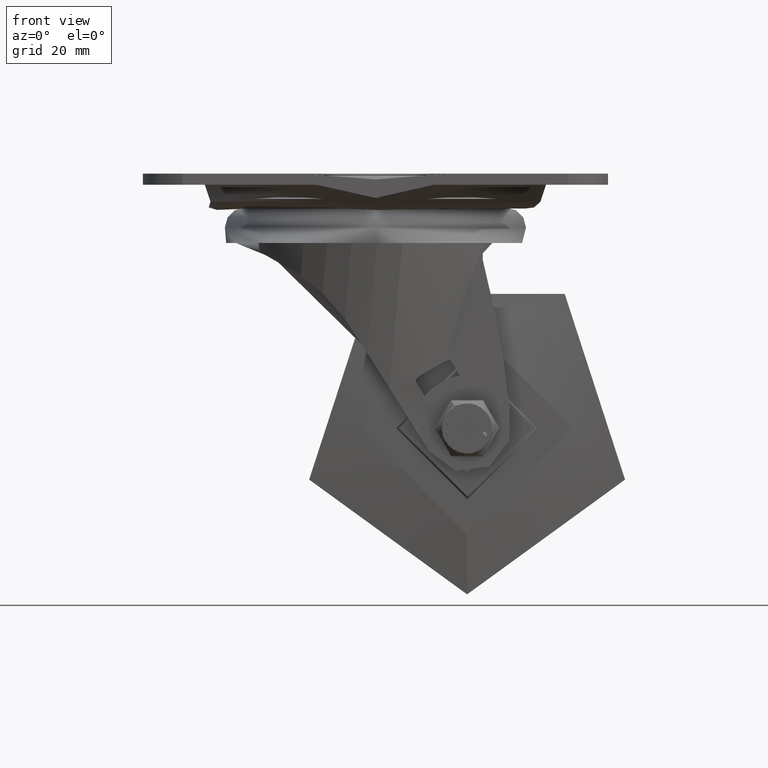
[diagram: clean part render]
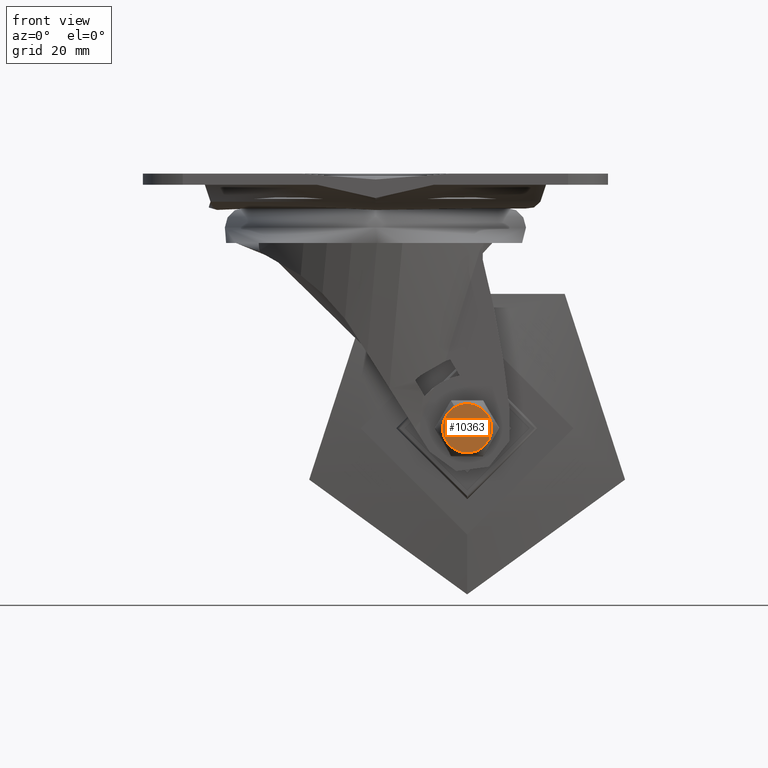
[diagram: same view with one face highlighted and labeled with its STEP entity id]
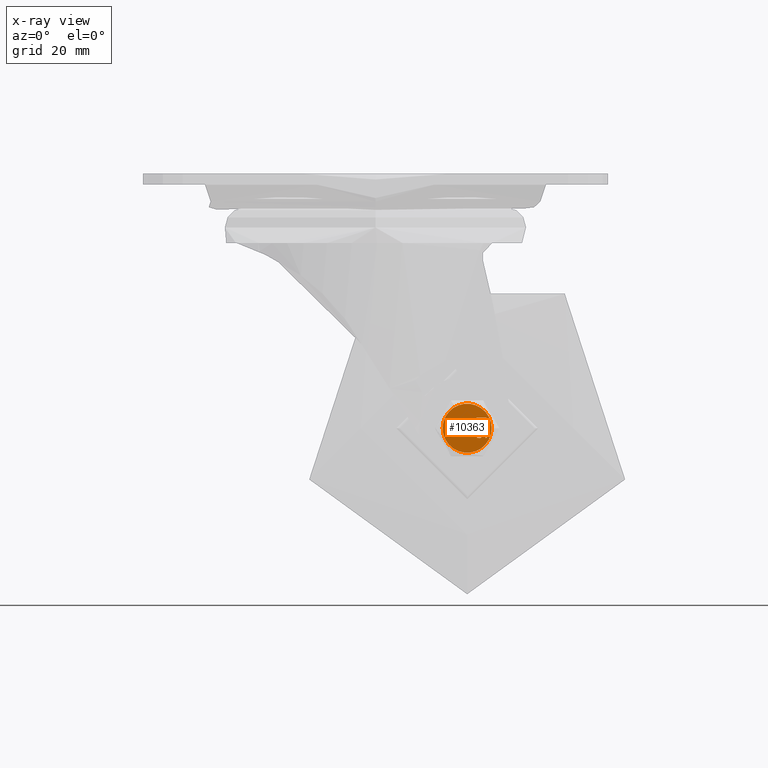
[diagram: x-ray of the same camera — body ghosted, the highlighted face saturated]
A machine part, front view. The second image highlights one B-rep face of the part: STEP entity #10363.
The next image is the same camera in x-ray: the body ghosted, the highlighted face saturated — about 0% of this face is hidden behind the body in this view.
In plain terms, the highlighted planar face has unit normal (0, -1, 0).
Its self-contained STEP definition (entity closure, byte-faithful):
#585=FACE_BOUND('',#3725,.T.);
#586=FACE_BOUND('',#3726,.T.);
#587=FACE_BOUND('',#3727,.T.);
#588=FACE_BOUND('',#3728,.T.);
#589=FACE_BOUND('',#3729,.T.);
#763=PLANE('',#11501);
#1200=B_SPLINE_CURVE_WITH_KNOTS('',2,(#22873,#22874,#22875,#22876,#22877,
#22878),.UNSPECIFIED.,.F.,.F.,(3,1,1,1,3),(0.,1.,1.99999999999993,3.00768321512988,
4.01536643025986),.UNSPECIFIED.);
#1201=B_SPLINE_CURVE_WITH_KNOTS('',2,(#22882,#22883,#22884,#22885,#22886,
#22887),.UNSPECIFIED.,.F.,.F.,(3,1,1,1,3),(0.,1.,2.00000000000004,2.99231678487006,
3.98463356974008),.UNSPECIFIED.);
#1202=B_SPLINE_CURVE_WITH_KNOTS('',2,(#22891,#22892,#22893),
 .UNSPECIFIED.,.F.,.F.,(3,3),(0.,1.),.UNSPECIFIED.);
#1203=B_SPLINE_CURVE_WITH_KNOTS('',2,(#22895,#22896,#22897,#22898,#22899,
#22900,#22901,#22902),.UNSPECIFIED.,.F.,.F.,(3,1,1,1,1,1,3),(1.,2.30397900352021,
3.22995737650693,4.15593574949365,5.07394871712135,5.99196168474905,8.43140063805187),
 .UNSPECIFIED.);
#1204=B_SPLINE_CURVE_WITH_KNOTS('',2,(#22904,#22905,#22906,#22907),
 .UNSPECIFIED.,.F.,.F.,(3,1,3),(0.,1.,2.00000000000002),.UNSPECIFIED.);
#1205=B_SPLINE_CURVE_WITH_KNOTS('',2,(#22909,#22910,#22911,#22912),
 .UNSPECIFIED.,.F.,.F.,(3,1,3),(2.00000000000002,3.81196532238897,5.62393064477795),
 .UNSPECIFIED.);
#1206=B_SPLINE_CURVE_WITH_KNOTS('',2,(#22914,#22915,#22916,#22917,#22918,
#22919,#22920,#22921,#22922),.UNSPECIFIED.,.F.,.F.,(3,1,1,1,1,1,1,3),(5.62393064477795,
31.7762060154086,38.1026139987158,44.4290219820228,50.75542996533,57.0818379486372,
65.801831095272,74.5218242419068),.UNSPECIFIED.);
#1207=B_SPLINE_CURVE_WITH_KNOTS('',2,(#22926,#22927,#22928),
 .UNSPECIFIED.,.F.,.F.,(3,3),(0.,1.),.UNSPECIFIED.);
#1208=B_SPLINE_CURVE_WITH_KNOTS('',2,(#22930,#22931,#22932,#22933,#22934),
 .UNSPECIFIED.,.F.,.F.,(3,1,1,3),(1.,2.54131519396761,3.63750638054413,
4.73369756712063),.UNSPECIFIED.);
#1209=B_SPLINE_CURVE_WITH_KNOTS('',2,(#22936,#22937,#22938,#22939,#22940,
#22941),.UNSPECIFIED.,.F.,.F.,(3,1,1,1,3),(4.73369756712063,5.8202254650591,
6.90675336299759,8.74490291268647,10.5830524623754),.UNSPECIFIED.);
#1210=B_SPLINE_CURVE_WITH_KNOTS('',2,(#22943,#22944,#22945,#22946),
 .UNSPECIFIED.,.F.,.F.,(3,1,3),(10.5830524623754,11.1770178892942,11.7709833162131),
 .UNSPECIFIED.);
#1211=B_SPLINE_CURVE_WITH_KNOTS('',2,(#22948,#22949,#22950,#22951),
 .UNSPECIFIED.,.F.,.F.,(3,1,3),(11.7709833162131,12.4873893311279,13.2037953460427),
 .UNSPECIFIED.);
#1212=B_SPLINE_CURVE_WITH_KNOTS('',2,(#22953,#22954,#22955,#22956,#22957,
#22958,#22959,#22960,#22961),.UNSPECIFIED.,.F.,.F.,(3,1,1,1,1,1,1,3),(13.2037953460427,
17.5851088184497,18.4471818109131,19.3092548033765,20.1713277958399,21.0334007883034,
22.2247613801415,23.4161219719797),.UNSPECIFIED.);
#1213=B_SPLINE_CURVE_WITH_KNOTS('',2,(#22965,#22966,#22967,#22968,#22969,
#22970),.UNSPECIFIED.,.F.,.F.,(3,1,1,1,3),(0.,1.,1.99999999999998,2.99231678486992,
3.98463356973989),.UNSPECIFIED.);
#1214=B_SPLINE_CURVE_WITH_KNOTS('',2,(#22978,#22979,#22980,#22981,#22982,
#22983),.UNSPECIFIED.,.F.,.F.,(3,1,1,1,3),(0.,1.,2.,3.00850546780077,4.01701093560154),
 .UNSPECIFIED.);
#1215=B_SPLINE_CURVE_WITH_KNOTS('',2,(#22987,#22988,#22989,#22990),
 .UNSPECIFIED.,.F.,.F.,(3,1,3),(0.,1.,2.00000000000003),.UNSPECIFIED.);
#1838=LINE('',#22833,#2397);
#1839=LINE('',#22839,#2398);
#1840=LINE('',#22843,#2399);
#1841=LINE('',#22847,#2400);
#1842=LINE('',#22853,#2401);
#1843=LINE('',#22859,#2402);
#1844=LINE('',#22863,#2403);
#1845=LINE('',#22867,#2404);
#1846=LINE('',#22880,#2405);
#1847=LINE('',#22888,#2406);
#1848=LINE('',#22924,#2407);
#1849=LINE('',#22962,#2408);
#1850=LINE('',#22972,#2409);
#1851=LINE('',#22974,#2410);
#1852=LINE('',#22976,#2411);
#1853=LINE('',#22985,#2412);
#1854=LINE('',#22991,#2413);
#2397=VECTOR('',#13769,1000.);
#2398=VECTOR('',#13774,1000.);
#2399=VECTOR('',#13777,1000.);
#2400=VECTOR('',#13780,1000.);
#2401=VECTOR('',#13785,1000.);
#2402=VECTOR('',#13790,1000.);
#2403=VECTOR('',#13793,1000.);
#2404=VECTOR('',#13796,1000.);
#2405=VECTOR('',#13801,1000.);
#2406=VECTOR('',#13802,1000.);
#2407=VECTOR('',#13803,1000.);
#2408=VECTOR('',#13804,1000.);
#2409=VECTOR('',#13805,1000.);
#2410=VECTOR('',#13806,1000.);
#2411=VECTOR('',#13807,1000.);
#2412=VECTOR('',#13808,1000.);
#2413=VECTOR('',#13809,1000.);
#3023=FACE_OUTER_BOUND('',#3724,.T.);
#3724=EDGE_LOOP('',(#9185));
#3725=EDGE_LOOP('',(#9186,#9187,#9188,#9189,#9190,#9191,#9192,#9193,#9194,
#9195));
#3726=EDGE_LOOP('',(#9196,#9197,#9198,#9199,#9200,#9201,#9202,#9203,#9204,
#9205));
#3727=EDGE_LOOP('',(#9206,#9207,#9208,#9209));
#3728=EDGE_LOOP('',(#9210,#9211,#9212,#9213,#9214,#9215,#9216,#9217,#9218,
#9219,#9220,#9221,#9222));
#3729=EDGE_LOOP('',(#9223,#9224,#9225,#9226,#9227,#9228,#9229,#9230));
#4253=CIRCLE('',#11502,5.54527255660282);
#4254=CIRCLE('',#11503,4.84371115981156);
#4255=CIRCLE('',#11504,0.63617753757747);
#4256=CIRCLE('',#11505,0.642387325974923);
#4257=CIRCLE('',#11506,0.632350305273495);
#4258=CIRCLE('',#11507,5.33514738708628);
#4259=CIRCLE('',#11508,0.642476794174128);
#4260=CIRCLE('',#11509,4.84371115980878);
#4261=CIRCLE('',#11510,0.636177537577492);
#4262=CIRCLE('',#11511,0.642387325974923);
#4263=CIRCLE('',#11512,0.632350305273495);
#4264=CIRCLE('',#11513,5.33514738697191);
#4265=CIRCLE('',#11514,0.642476794174128);
#5165=VERTEX_POINT('',#22829);
#5166=VERTEX_POINT('',#22831);
#5167=VERTEX_POINT('',#22832);
#5168=VERTEX_POINT('',#22834);
#5169=VERTEX_POINT('',#22836);
#5170=VERTEX_POINT('',#22838);
#5171=VERTEX_POINT('',#22840);
#5172=VERTEX_POINT('',#22842);
#5173=VERTEX_POINT('',#22844);
#5174=VERTEX_POINT('',#22846);
#5175=VERTEX_POINT('',#22848);
#5176=VERTEX_POINT('',#22851);
#5177=VERTEX_POINT('',#22852);
#5178=VERTEX_POINT('',#22854);
#5179=VERTEX_POINT('',#22856);
#5180=VERTEX_POINT('',#22858);
#5181=VERTEX_POINT('',#22860);
#5182=VERTEX_POINT('',#22862);
#5183=VERTEX_POINT('',#22864);
#5184=VERTEX_POINT('',#22866);
#5185=VERTEX_POINT('',#22868);
#5186=VERTEX_POINT('',#22871);
#5187=VERTEX_POINT('',#22872);
#5188=VERTEX_POINT('',#22879);
#5189=VERTEX_POINT('',#22881);
#5190=VERTEX_POINT('',#22889);
#5191=VERTEX_POINT('',#22890);
#5192=VERTEX_POINT('',#22894);
#5193=VERTEX_POINT('',#22903);
#5194=VERTEX_POINT('',#22908);
#5195=VERTEX_POINT('',#22913);
#5196=VERTEX_POINT('',#22923);
#5197=VERTEX_POINT('',#22925);
#5198=VERTEX_POINT('',#22929);
#5199=VERTEX_POINT('',#22935);
#5200=VERTEX_POINT('',#22942);
#5201=VERTEX_POINT('',#22947);
#5202=VERTEX_POINT('',#22952);
#5203=VERTEX_POINT('',#22963);
#5204=VERTEX_POINT('',#22964);
#5205=VERTEX_POINT('',#22971);
#5206=VERTEX_POINT('',#22973);
#5207=VERTEX_POINT('',#22975);
#5208=VERTEX_POINT('',#22977);
#5209=VERTEX_POINT('',#22984);
#5210=VERTEX_POINT('',#22986);
#6529=EDGE_CURVE('',#5165,#5165,#4253,.T.);
#6530=EDGE_CURVE('',#5166,#5167,#1838,.T.);
#6531=EDGE_CURVE('',#5167,#5168,#4254,.T.);
#6532=EDGE_CURVE('',#5168,#5169,#4255,.T.);
#6533=EDGE_CURVE('',#5169,#5170,#1839,.T.);
#6534=EDGE_CURVE('',#5170,#5171,#4256,.T.);
#6535=EDGE_CURVE('',#5171,#5172,#1840,.T.);
#6536=EDGE_CURVE('',#5172,#5173,#4257,.T.);
#6537=EDGE_CURVE('',#5173,#5174,#1841,.T.);
#6538=EDGE_CURVE('',#5174,#5175,#4258,.T.);
#6539=EDGE_CURVE('',#5175,#5166,#4259,.T.);
#6540=EDGE_CURVE('',#5176,#5177,#1842,.T.);
#6541=EDGE_CURVE('',#5177,#5178,#4260,.T.);
#6542=EDGE_CURVE('',#5178,#5179,#4261,.T.);
#6543=EDGE_CURVE('',#5179,#5180,#1843,.T.);
#6544=EDGE_CURVE('',#5180,#5181,#4262,.T.);
#6545=EDGE_CURVE('',#5181,#5182,#1844,.T.);
#6546=EDGE_CURVE('',#5182,#5183,#4263,.T.);
#6547=EDGE_CURVE('',#5183,#5184,#1845,.T.);
#6548=EDGE_CURVE('',#5184,#5185,#4264,.T.);
#6549=EDGE_CURVE('',#5185,#5176,#4265,.T.);
#6550=EDGE_CURVE('',#5186,#5187,#1200,.T.);
#6551=EDGE_CURVE('',#5187,#5188,#1846,.T.);
#6552=EDGE_CURVE('',#5188,#5189,#1201,.T.);
#6553=EDGE_CURVE('',#5189,#5186,#1847,.T.);
#6554=EDGE_CURVE('',#5190,#5191,#1202,.T.);
#6555=EDGE_CURVE('',#5191,#5192,#1203,.T.);
#6556=EDGE_CURVE('',#5192,#5193,#1204,.T.);
#6557=EDGE_CURVE('',#5193,#5194,#1205,.T.);
#6558=EDGE_CURVE('',#5194,#5195,#1206,.T.);
#6559=EDGE_CURVE('',#5195,#5196,#1848,.T.);
#6560=EDGE_CURVE('',#5196,#5197,#1207,.T.);
#6561=EDGE_CURVE('',#5197,#5198,#1208,.T.);
#6562=EDGE_CURVE('',#5198,#5199,#1209,.T.);
#6563=EDGE_CURVE('',#5199,#5200,#1210,.T.);
#6564=EDGE_CURVE('',#5200,#5201,#1211,.T.);
#6565=EDGE_CURVE('',#5201,#5202,#1212,.T.);
#6566=EDGE_CURVE('',#5202,#5190,#1849,.T.);
#6567=EDGE_CURVE('',#5203,#5204,#1213,.T.);
#6568=EDGE_CURVE('',#5204,#5205,#1850,.T.);
#6569=EDGE_CURVE('',#5205,#5206,#1851,.T.);
#6570=EDGE_CURVE('',#5206,#5207,#1852,.T.);
#6571=EDGE_CURVE('',#5207,#5208,#1214,.T.);
#6572=EDGE_CURVE('',#5208,#5209,#1853,.T.);
#6573=EDGE_CURVE('',#5209,#5210,#1215,.T.);
#6574=EDGE_CURVE('',#5210,#5203,#1854,.T.);
#9185=ORIENTED_EDGE('',*,*,#6529,.F.);
#9186=ORIENTED_EDGE('',*,*,#6530,.T.);
#9187=ORIENTED_EDGE('',*,*,#6531,.T.);
#9188=ORIENTED_EDGE('',*,*,#6532,.T.);
#9189=ORIENTED_EDGE('',*,*,#6533,.T.);
#9190=ORIENTED_EDGE('',*,*,#6534,.T.);
#9191=ORIENTED_EDGE('',*,*,#6535,.T.);
#9192=ORIENTED_EDGE('',*,*,#6536,.T.);
#9193=ORIENTED_EDGE('',*,*,#6537,.T.);
#9194=ORIENTED_EDGE('',*,*,#6538,.T.);
#9195=ORIENTED_EDGE('',*,*,#6539,.T.);
#9196=ORIENTED_EDGE('',*,*,#6540,.T.);
#9197=ORIENTED_EDGE('',*,*,#6541,.T.);
#9198=ORIENTED_EDGE('',*,*,#6542,.T.);
#9199=ORIENTED_EDGE('',*,*,#6543,.T.);
#9200=ORIENTED_EDGE('',*,*,#6544,.T.);
#9201=ORIENTED_EDGE('',*,*,#6545,.T.);
#9202=ORIENTED_EDGE('',*,*,#6546,.T.);
#9203=ORIENTED_EDGE('',*,*,#6547,.T.);
#9204=ORIENTED_EDGE('',*,*,#6548,.T.);
#9205=ORIENTED_EDGE('',*,*,#6549,.T.);
#9206=ORIENTED_EDGE('',*,*,#6550,.T.);
#9207=ORIENTED_EDGE('',*,*,#6551,.T.);
#9208=ORIENTED_EDGE('',*,*,#6552,.T.);
#9209=ORIENTED_EDGE('',*,*,#6553,.T.);
#9210=ORIENTED_EDGE('',*,*,#6554,.T.);
#9211=ORIENTED_EDGE('',*,*,#6555,.T.);
#9212=ORIENTED_EDGE('',*,*,#6556,.T.);
#9213=ORIENTED_EDGE('',*,*,#6557,.T.);
#9214=ORIENTED_EDGE('',*,*,#6558,.T.);
#9215=ORIENTED_EDGE('',*,*,#6559,.T.);
#9216=ORIENTED_EDGE('',*,*,#6560,.T.);
#9217=ORIENTED_EDGE('',*,*,#6561,.T.);
#9218=ORIENTED_EDGE('',*,*,#6562,.T.);
#9219=ORIENTED_EDGE('',*,*,#6563,.T.);
#9220=ORIENTED_EDGE('',*,*,#6564,.T.);
#9221=ORIENTED_EDGE('',*,*,#6565,.T.);
#9222=ORIENTED_EDGE('',*,*,#6566,.T.);
#9223=ORIENTED_EDGE('',*,*,#6567,.T.);
#9224=ORIENTED_EDGE('',*,*,#6568,.T.);
#9225=ORIENTED_EDGE('',*,*,#6569,.T.);
#9226=ORIENTED_EDGE('',*,*,#6570,.T.);
#9227=ORIENTED_EDGE('',*,*,#6571,.T.);
#9228=ORIENTED_EDGE('',*,*,#6572,.T.);
#9229=ORIENTED_EDGE('',*,*,#6573,.T.);
#9230=ORIENTED_EDGE('',*,*,#6574,.T.);
#10363=ADVANCED_FACE('',(#3023,#585,#586,#587,#588,#589),#763,.T.);
#11501=AXIS2_PLACEMENT_3D('',#22828,#13765,#13766);
#11502=AXIS2_PLACEMENT_3D('',#22830,#13767,#13768);
#11503=AXIS2_PLACEMENT_3D('',#22835,#13770,#13771);
#11504=AXIS2_PLACEMENT_3D('',#22837,#13772,#13773);
#11505=AXIS2_PLACEMENT_3D('',#22841,#13775,#13776);
#11506=AXIS2_PLACEMENT_3D('',#22845,#13778,#13779);
#11507=AXIS2_PLACEMENT_3D('',#22849,#13781,#13782);
#11508=AXIS2_PLACEMENT_3D('',#22850,#13783,#13784);
#11509=AXIS2_PLACEMENT_3D('',#22855,#13786,#13787);
#11510=AXIS2_PLACEMENT_3D('',#22857,#13788,#13789);
#11511=AXIS2_PLACEMENT_3D('',#22861,#13791,#13792);
#11512=AXIS2_PLACEMENT_3D('',#22865,#13794,#13795);
#11513=AXIS2_PLACEMENT_3D('',#22869,#13797,#13798);
#11514=AXIS2_PLACEMENT_3D('',#22870,#13799,#13800);
#13765=DIRECTION('center_axis',(1.,0.,-3.49148336110938E-15));
#13766=DIRECTION('ref_axis',(-3.49148336110938E-15,0.,-1.));
#13767=DIRECTION('center_axis',(-1.,-1.95724284060969E-31,3.49148336110938E-15));
#13768=DIRECTION('ref_axis',(-1.74574168055469E-15,-0.866025403784439,-0.5));
#13769=DIRECTION('',(-2.3185935470101E-15,-0.747669339156704,-0.664071200463458));
#13770=DIRECTION('center_axis',(1.,-2.56527561304674E-31,-3.49148336110938E-15));
#13771=DIRECTION('ref_axis',(-2.59767218477806E-15,-0.668176885368964,-0.744002452857939));
#13772=DIRECTION('center_axis',(-1.,-2.32355989429923E-31,3.49148336110938E-15));
#13773=DIRECTION('ref_axis',(2.46587070223487E-15,0.707959503020119,0.706253029787134));
#13774=DIRECTION('',(-3.49148336110938E-15,0.,-1.));
#13775=DIRECTION('center_axis',(-1.,0.,3.49148336110938E-15));
#13776=DIRECTION('ref_axis',(-3.59950001276271E-18,0.999999468584124,-0.0010309371806999));
#13777=DIRECTION('',(3.49148336110938E-15,0.,1.));
#13778=DIRECTION('center_axis',(-1.,0.,3.49148336110938E-15));
#13779=DIRECTION('ref_axis',(-2.5419883781465E-17,-0.999973496518455,-0.00728053986010924));
#13780=DIRECTION('',(2.31914292686003E-15,0.747529554381164,0.664228549015096));
#13781=DIRECTION('center_axis',(1.,0.,-3.49148336110938E-15));
#13782=DIRECTION('ref_axis',(2.59989708800608E-15,0.667466652296317,0.744639690100083));
#13783=DIRECTION('center_axis',(-1.,2.27821990286737E-31,3.49148336110938E-15));
#13784=DIRECTION('ref_axis',(-2.45488586774444E-15,-0.711084212684,-0.703106849967753));
#13785=DIRECTION('',(-2.31859354701008E-15,-0.747669339156707,-0.664071200463454));
#13786=DIRECTION('center_axis',(1.,0.,-3.49148336110938E-15));
#13787=DIRECTION('ref_axis',(-2.59767218477804E-15,-0.668176885368972,-0.744002452857932));
#13788=DIRECTION('center_axis',(-1.,0.,3.49148336110938E-15));
#13789=DIRECTION('ref_axis',(2.46587070223483E-15,0.707959503020128,0.706253029787125));
#13790=DIRECTION('',(-3.49148336110938E-15,0.,-1.));
#13791=DIRECTION('center_axis',(-1.,0.,3.49148336110938E-15));
#13792=DIRECTION('ref_axis',(-3.59950001276271E-18,0.999999468584124,-0.0010309371806999));
#13793=DIRECTION('',(3.49148336110938E-15,0.,1.));
#13794=DIRECTION('center_axis',(-1.,0.,3.49148336110938E-15));
#13795=DIRECTION('ref_axis',(-2.5419883781465E-17,-0.999973496518455,-0.00728053986010924));
#13796=DIRECTION('',(2.31914292686E-15,0.747529554381171,0.664228549015087));
#13797=DIRECTION('center_axis',(1.,-2.11445118890302E-31,-3.49148336110938E-15));
#13798=DIRECTION('ref_axis',(2.59989708800571E-15,0.667466652296436,0.744639690099976));
#13799=DIRECTION('center_axis',(-1.,0.,3.49148336110938E-15));
#13800=DIRECTION('ref_axis',(-2.45488586774444E-15,-0.711084212684,-0.703106849967753));
#13801=DIRECTION('',(3.49148336110938E-15,0.,1.));
#13802=DIRECTION('',(-3.49148336110938E-15,0.,-1.));
#13803=DIRECTION('',(-1.61593187367966E-15,0.88645175159504,-0.462821015181988));
#13804=DIRECTION('',(1.75687424988937E-15,-0.864176683773693,0.503188492735976));
#13805=DIRECTION('',(-3.49148336110938E-15,0.,-1.));
#13806=DIRECTION('',(0.,1.,0.));
#13807=DIRECTION('',(-2.42183840896245E-15,-0.720320213491447,-0.693641687065906));
#13808=DIRECTION('',(0.,-1.,0.));
#13809=DIRECTION('',(3.49148336110938E-15,0.,1.));
#22828=CARTESIAN_POINT('Origin',(30.442500167855,8.67361737988404E-16,-19.9425001678551));
#22829=CARTESIAN_POINT('',(30.442500167855,1.88261709304073E-16,-14.3972276112523));
#22830=CARTESIAN_POINT('Origin',(30.442500167855,8.67361737988404E-16,-19.9425001678551));
#22831=CARTESIAN_POINT('',(30.442500167855,-0.794668805024486,-23.3635519391623));
#22832=CARTESIAN_POINT('',(30.442500167855,-0.834162576892185,-23.398629847432));
#22833=CARTESIAN_POINT('',(30.442500167855,0.266857244627541,-22.4207168632841));
#22834=CARTESIAN_POINT('',(30.442500167855,-0.794746425491451,-23.4336432208315));
#22835=CARTESIAN_POINT('Origin',(30.442500167855,2.4022932594976,-19.7948968635968));
#22836=CARTESIAN_POINT('',(30.442500167855,-0.608961837811371,-23.8854719590331));
#22837=CARTESIAN_POINT('Origin',(30.442500167855,-1.24513435882736,-23.8829455342281));
#22838=CARTESIAN_POINT('',(30.442500167855,-0.608961837811371,-24.129006174135));
#22839=CARTESIAN_POINT('',(30.442500167855,-0.608961837811371,-21.9139860634441));
#22840=CARTESIAN_POINT('',(30.442500167855,-1.89373580701157,-24.129006174135));
#22841=CARTESIAN_POINT('Origin',(30.442500167855,-1.25134882241147,-24.1283439131562));
#22842=CARTESIAN_POINT('',(30.442500167855,-1.89373580701157,-23.8854719590331));
#22843=CARTESIAN_POINT('',(30.442500167855,-1.89373580701157,-22.035753170995));
#22844=CARTESIAN_POINT('',(30.442500167855,-1.70853337283373,-23.4337208412984));
#22845=CARTESIAN_POINT('Origin',(30.442500167855,-1.26140226122272,-23.8808681074301));
#22846=CARTESIAN_POINT('',(30.442500167855,-1.66903003107836,-23.398619557046));
#22847=CARTESIAN_POINT('',(30.442500167855,-0.354544218582568,-22.230613558062));
#22848=CARTESIAN_POINT('',(30.442500167855,-1.70845575236676,-23.3636295596293));
#22849=CARTESIAN_POINT('Origin',(30.442500167855,-5.2300629970442,-27.3713820540043));
#22850=CARTESIAN_POINT('Origin',(30.442500167855,-1.25160064701371,-22.9118997247001));
#22851=CARTESIAN_POINT('',(30.442500167855,1.69415384773259,-23.3635519391623));
#22852=CARTESIAN_POINT('',(30.442500167855,1.6546600758649,-23.398629847432));
#22853=CARTESIAN_POINT('',(30.442500167855,2.06004221780631,-23.0385741496163));
#22854=CARTESIAN_POINT('',(30.442500167855,1.69407622726563,-23.4336432208315));
#22855=CARTESIAN_POINT('Origin',(30.442500167855,4.89111591225286,-19.7948968635989));
#22856=CARTESIAN_POINT('',(30.442500167855,1.87986081494571,-23.8854719590331));
#22857=CARTESIAN_POINT('Origin',(30.442500167855,1.2436882939297,-23.8829455342281));
#22858=CARTESIAN_POINT('',(30.442500167855,1.87986081494571,-24.129006174135));
#22859=CARTESIAN_POINT('',(30.442500167855,1.87986081494571,-21.9139860634441));
#22860=CARTESIAN_POINT('',(30.442500167855,0.595086845745509,-24.129006174135));
#22861=CARTESIAN_POINT('Origin',(30.442500167855,1.23747383034561,-24.1283439131562));
#22862=CARTESIAN_POINT('',(30.442500167855,0.595086845745509,-23.8854719590331));
#22863=CARTESIAN_POINT('',(30.442500167855,0.595086845745509,-22.035753170995));
#22864=CARTESIAN_POINT('',(30.442500167855,0.780289279923353,-23.4337208412984));
#22865=CARTESIAN_POINT('Origin',(30.442500167855,1.22742039153436,-23.8808681074301));
#22866=CARTESIAN_POINT('',(30.442500167855,0.819792621678716,-23.398619557046));
#22867=CARTESIAN_POINT('',(30.442500167855,1.4389008440818,-22.8485017003808));
#22868=CARTESIAN_POINT('',(30.442500167855,0.780366900390317,-23.3636295596293));
#22869=CARTESIAN_POINT('Origin',(30.442500167855,-2.74124034421143,-27.3713820539185));
#22870=CARTESIAN_POINT('Origin',(30.442500167855,1.23722200574337,-22.9118997247001));
#22871=CARTESIAN_POINT('',(30.442500167855,0.158044806500601,-24.6160746043387));
#22872=CARTESIAN_POINT('',(30.442500167855,-0.152553492058763,-24.6160746043387));
#22873=CARTESIAN_POINT('Ctrl Pts',(30.442500167855,0.158044806500601,-24.6160746043387));
#22874=CARTESIAN_POINT('Ctrl Pts',(30.442500167855,0.158044806500601,-24.6804995919194));
#22875=CARTESIAN_POINT('Ctrl Pts',(30.442500167855,0.0684319773898209,-24.7701512312637));
#22876=CARTESIAN_POINT('Ctrl Pts',(30.442500167855,-0.0634063857497718,
-24.7701512312637));
#22877=CARTESIAN_POINT('Ctrl Pts',(30.442500167855,-0.152553492058763,-24.6810041249547));
#22878=CARTESIAN_POINT('Ctrl Pts',(30.442500167855,-0.152553492058763,-24.6160746043387));
#22879=CARTESIAN_POINT('',(30.442500167855,-0.152553492058763,-24.4943269019045));
#22880=CARTESIAN_POINT('',(30.442500167855,-0.152553492058763,-22.2792873860969));
#22881=CARTESIAN_POINT('',(30.442500167855,0.158044806500601,-24.4943269019045));
#22882=CARTESIAN_POINT('Ctrl Pts',(30.442500167855,-0.152553492058763,-24.4943269019045));
#22883=CARTESIAN_POINT('Ctrl Pts',(30.442500167855,-0.152553492058763,-24.4299019143238));
#22884=CARTESIAN_POINT('Ctrl Pts',(30.442500167855,-0.0629018527145012,
-24.3402502749795));
#22885=CARTESIAN_POINT('Ctrl Pts',(30.442500167855,0.0679274443545503,-24.3402502749795));
#22886=CARTESIAN_POINT('Ctrl Pts',(30.442500167855,0.158044806500601,-24.430406447359));
#22887=CARTESIAN_POINT('Ctrl Pts',(30.442500167855,0.158044806500601,-24.4943269019045));
#22888=CARTESIAN_POINT('',(30.442500167855,0.158044806500601,-22.2184135348798));
#22889=CARTESIAN_POINT('',(30.442500167855,1.17712391728053,-16.5517738095051));
#22890=CARTESIAN_POINT('',(30.442500167855,0.959747799545806,-16.3971538393113));
#22891=CARTESIAN_POINT('Ctrl Pts',(30.442500167855,1.17712391728053,-16.5517738095051));
#22892=CARTESIAN_POINT('Ctrl Pts',(30.442500167855,1.03763993814491,-16.535512321676));
#22893=CARTESIAN_POINT('Ctrl Pts',(30.442500167855,0.959747799545806,-16.3971538393113));
#22894=CARTESIAN_POINT('',(30.442500167855,2.1391131746079,-15.5313363405533));
#22895=CARTESIAN_POINT('Ctrl Pts',(30.442500167855,0.959747799545806,-16.3971538393113));
#22896=CARTESIAN_POINT('Ctrl Pts',(30.442500167855,0.843472340032642,-16.2258454687202));
#22897=CARTESIAN_POINT('Ctrl Pts',(30.442500167855,0.843472340032642,-15.9096584965394));
#22898=CARTESIAN_POINT('Ctrl Pts',(30.442500167855,0.940459113505071,-15.6774180593809));
#22899=CARTESIAN_POINT('Ctrl Pts',(30.442500167855,1.12015049452842,-15.4977266783575));
#22900=CARTESIAN_POINT('Ctrl Pts',(30.442500167855,1.35460311499538,-15.3998084592815));
#22901=CARTESIAN_POINT('Ctrl Pts',(30.442500167855,1.83464689293875,-15.3998084592815));
#22902=CARTESIAN_POINT('Ctrl Pts',(30.442500167855,2.1391131746079,-15.5313363405533));
#22903=CARTESIAN_POINT('',(30.442500167855,2.24029145329643,-15.7171985487003));
#22904=CARTESIAN_POINT('Ctrl Pts',(30.442500167855,2.1391131746079,-15.5313363405533));
#22905=CARTESIAN_POINT('Ctrl Pts',(30.442500167855,2.21560814480164,-15.5588916063257));
#22906=CARTESIAN_POINT('Ctrl Pts',(30.442500167855,2.25977419050457,-15.6758268398081));
#22907=CARTESIAN_POINT('Ctrl Pts',(30.442500167855,2.24029145329643,-15.7171985487003));
#22908=CARTESIAN_POINT('',(30.442500167855,2.08198451092186,-15.8199680469616));
#22909=CARTESIAN_POINT('Ctrl Pts',(30.442500167855,2.24029145329643,-15.7171985487003));
#22910=CARTESIAN_POINT('Ctrl Pts',(30.442500167855,2.21312428985877,-15.7954787896342));
#22911=CARTESIAN_POINT('Ctrl Pts',(30.442500167855,2.0944425958697,-15.8394507841698));
#22912=CARTESIAN_POINT('Ctrl Pts',(30.442500167855,2.08198451092186,-15.8199680469616));
#22913=CARTESIAN_POINT('',(30.442500167855,1.33791471459797,-16.3390549197882));
#22914=CARTESIAN_POINT('Ctrl Pts',(30.442500167855,2.08198451092186,-15.8199680469616));
#22915=CARTESIAN_POINT('Ctrl Pts',(30.442500167855,1.76758280948123,-15.707922902898));
#22916=CARTESIAN_POINT('Ctrl Pts',(30.442500167855,1.41770855463771,-15.707922902898));
#22917=CARTESIAN_POINT('Ctrl Pts',(30.442500167855,1.2964653852388,-15.760860061368));
#22918=CARTESIAN_POINT('Ctrl Pts',(30.442500167855,1.20681374589454,-15.8505117007122));
#22919=CARTESIAN_POINT('Ctrl Pts',(30.442500167855,1.15407063859201,-15.9714055780098));
#22920=CARTESIAN_POINT('Ctrl Pts',(30.442500167855,1.15407063859201,-16.1368147931116));
#22921=CARTESIAN_POINT('Ctrl Pts',(30.442500167855,1.2544339023774,-16.2951217354862));
#22922=CARTESIAN_POINT('Ctrl Pts',(30.442500167855,1.33791471459797,-16.3390549197882));
#22923=CARTESIAN_POINT('',(30.442500167855,1.9971841507629,-16.6832628805433));
#22924=CARTESIAN_POINT('',(30.442500167855,1.55144026313005,-16.4505377060325));
#22925=CARTESIAN_POINT('',(30.442500167855,2.23047246422539,-16.9024630792517));
#22926=CARTESIAN_POINT('Ctrl Pts',(30.442500167855,1.9971841507629,-16.6832628805433));
#22927=CARTESIAN_POINT('Ctrl Pts',(30.442500167855,2.17955343789653,-16.7669765541648));
#22928=CARTESIAN_POINT('Ctrl Pts',(30.442500167855,2.23047246422539,-16.9024630792517));
#22929=CARTESIAN_POINT('',(30.442500167855,2.18405542498048,-17.712937185064));
#22930=CARTESIAN_POINT('Ctrl Pts',(30.442500167855,2.23047246422539,-16.9024630792517));
#22931=CARTESIAN_POINT('Ctrl Pts',(30.442500167855,2.37178052433468,-17.0750909977813));
#22932=CARTESIAN_POINT('Ctrl Pts',(30.442500167855,2.37178052433468,-17.3892210275875));
#22933=CARTESIAN_POINT('Ctrl Pts',(30.442500167855,2.27432802806046,-17.6227033922175));
#22934=CARTESIAN_POINT('Ctrl Pts',(30.442500167855,2.18405542498048,-17.712937185064));
#22935=CARTESIAN_POINT('',(30.442500167855,0.911118576992403,-17.6297280444778));
#22936=CARTESIAN_POINT('Ctrl Pts',(30.442500167855,2.18405542498048,-17.712937185064));
#22937=CARTESIAN_POINT('Ctrl Pts',(30.442500167855,2.09459783680363,-17.8023947732408));
#22938=CARTESIAN_POINT('Ctrl Pts',(30.442500167855,1.86134833357462,-17.8998084592815));
#22939=CARTESIAN_POINT('Ctrl Pts',(30.442500167855,1.50615707674402,-17.8998084592815));
#22940=CARTESIAN_POINT('Ctrl Pts',(30.442500167855,1.08995613287914,-17.760246859679));
#22941=CARTESIAN_POINT('Ctrl Pts',(30.442500167855,0.911118576992403,-17.6297280444778));
#22942=CARTESIAN_POINT('',(30.442500167855,0.870445452302885,-17.4155343658886));
#22943=CARTESIAN_POINT('Ctrl Pts',(30.442500167855,0.911118576992403,-17.6297280444778));
#22944=CARTESIAN_POINT('Ctrl Pts',(30.442500167855,0.852670365367962,-17.588472766286));
#22945=CARTESIAN_POINT('Ctrl Pts',(30.442500167855,0.836176016137957,-17.4627276098031));
#22946=CARTESIAN_POINT('Ctrl Pts',(30.442500167855,0.870445452302885,-17.4155343658886));
#22947=CARTESIAN_POINT('',(30.442500167855,1.08704536536796,-17.3759479277366));
#22948=CARTESIAN_POINT('Ctrl Pts',(30.442500167855,0.870445452302885,-17.4155343658886));
#22949=CARTESIAN_POINT('Ctrl Pts',(30.442500167855,0.911002146291956,-17.3580564101012));
#22950=CARTESIAN_POINT('Ctrl Pts',(30.442500167855,1.03911472701724,-17.340824666435));
#22951=CARTESIAN_POINT('Ctrl Pts',(30.442500167855,1.08704536536796,-17.3759479277366));
#22952=CARTESIAN_POINT('',(30.442500167855,1.88610926253637,-16.964598263057));
#22953=CARTESIAN_POINT('Ctrl Pts',(30.442500167855,1.08704536536796,-17.3759479277366));
#22954=CARTESIAN_POINT('Ctrl Pts',(30.442500167855,1.37948047465758,-17.591694015665));
#22955=CARTESIAN_POINT('Ctrl Pts',(30.442500167855,1.79824289393229,-17.591694015665));
#22956=CARTESIAN_POINT('Ctrl Pts',(30.442500167855,1.91824413585977,-17.5393390106973));
#22957=CARTESIAN_POINT('Ctrl Pts',(30.442500167855,2.00793458543751,-17.4496485611196));
#22958=CARTESIAN_POINT('Ctrl Pts',(30.442500167855,2.06118222577531,-17.3275515665841));
#22959=CARTESIAN_POINT('Ctrl Pts',(30.442500167855,2.06118222577531,-17.1634618994206));
#22960=CARTESIAN_POINT('Ctrl Pts',(30.442500167855,1.9630699555319,-17.0051549570461));
#22961=CARTESIAN_POINT('Ctrl Pts',(30.442500167855,1.88610926253637,-16.964598263057));
#22962=CARTESIAN_POINT('',(30.442500167855,1.8292958344908,-16.9315172233088));
#22963=CARTESIAN_POINT('',(30.442500167855,-2.39050679558584,-15.5538850862065));
#22964=CARTESIAN_POINT('',(30.442500167855,-2.07990849702647,-15.5538850862065));
#22965=CARTESIAN_POINT('Ctrl Pts',(30.442500167855,-2.39050679558584,-15.5538850862065));
#22966=CARTESIAN_POINT('Ctrl Pts',(30.442500167855,-2.39050679558584,-15.4894600986258));
#22967=CARTESIAN_POINT('Ctrl Pts',(30.442500167855,-2.30085515624158,-15.3998084592815));
#22968=CARTESIAN_POINT('Ctrl Pts',(30.442500167855,-2.17002585917252,-15.3998084592815));
#22969=CARTESIAN_POINT('Ctrl Pts',(30.442500167855,-2.07990849702647,-15.4899646316611));
#22970=CARTESIAN_POINT('Ctrl Pts',(30.442500167855,-2.07990849702647,-15.5538850862065));
#22971=CARTESIAN_POINT('',(30.442500167855,-2.07990849702647,-17.591694015665));
#22972=CARTESIAN_POINT('',(30.442500167855,-2.07990849702647,-17.7481926270308));
#22973=CARTESIAN_POINT('',(30.442500167855,-1.2275193390533,-17.591694015665));
#22974=CARTESIAN_POINT('',(30.442500167855,-1.03995424851324,-17.591694015665));
#22975=CARTESIAN_POINT('',(30.442500167855,-1.24428535991768,-17.6078390727937));
#22976=CARTESIAN_POINT('',(30.442500167855,-1.49634649943324,-17.8505646145495));
#22977=CARTESIAN_POINT('',(30.442500167855,-1.26105138078206,-17.8998084592815));
#22978=CARTESIAN_POINT('Ctrl Pts',(30.442500167855,-1.24428535991768,-17.6078390727937));
#22979=CARTESIAN_POINT('Ctrl Pts',(30.442500167855,-1.19588899876517,-17.591694015665));
#22980=CARTESIAN_POINT('Ctrl Pts',(30.442500167855,-1.10573282638564,-17.6818501880446));
#22981=CARTESIAN_POINT('Ctrl Pts',(30.442500167855,-1.10573282638564,-17.8101568199373));
#22982=CARTESIAN_POINT('Ctrl Pts',(30.442500167855,-1.1953844657299,-17.8998084592815));
#22983=CARTESIAN_POINT('Ctrl Pts',(30.442500167855,-1.26105138078206,-17.8998084592815));
#22984=CARTESIAN_POINT('',(30.442500167855,-2.23518824118941,-17.8998084592815));
#22985=CARTESIAN_POINT('',(30.442500167855,-0.630525690391031,-17.8998084592815));
#22986=CARTESIAN_POINT('',(30.442500167855,-2.39050679558584,-17.7457318323565));
#22987=CARTESIAN_POINT('Ctrl Pts',(30.442500167855,-2.23518824118941,-17.8998084592815));
#22988=CARTESIAN_POINT('Ctrl Pts',(30.442500167855,-2.30135968927685,-17.8998084592815));
#22989=CARTESIAN_POINT('Ctrl Pts',(30.442500167855,-2.39050679558584,-17.8106613529725));
#22990=CARTESIAN_POINT('Ctrl Pts',(30.442500167855,-2.39050679558584,-17.7457318323565));
#22991=CARTESIAN_POINT('',(30.442500167855,-2.39050679558584,-18.8441160001058));